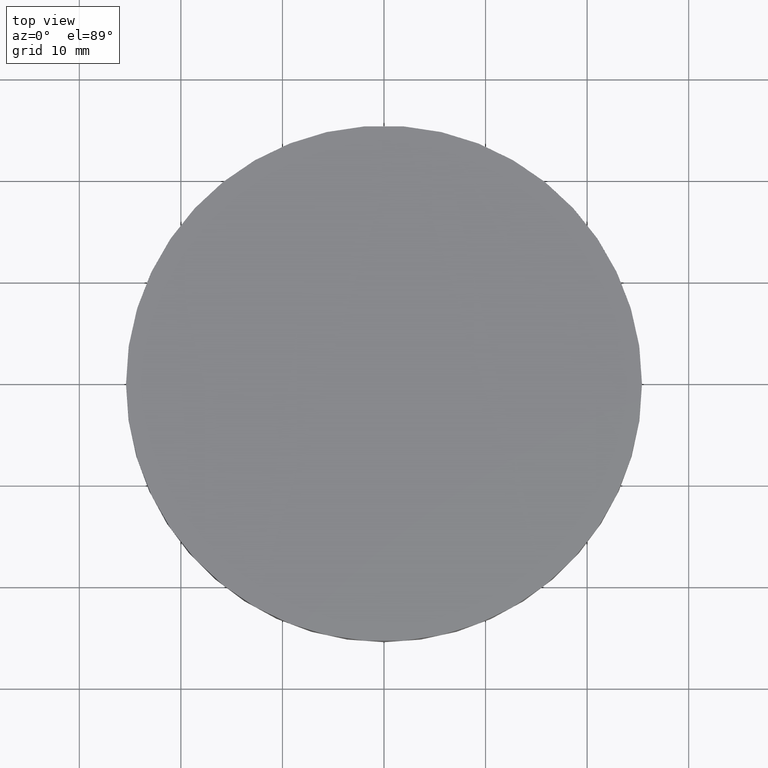
[diagram: clean part render]
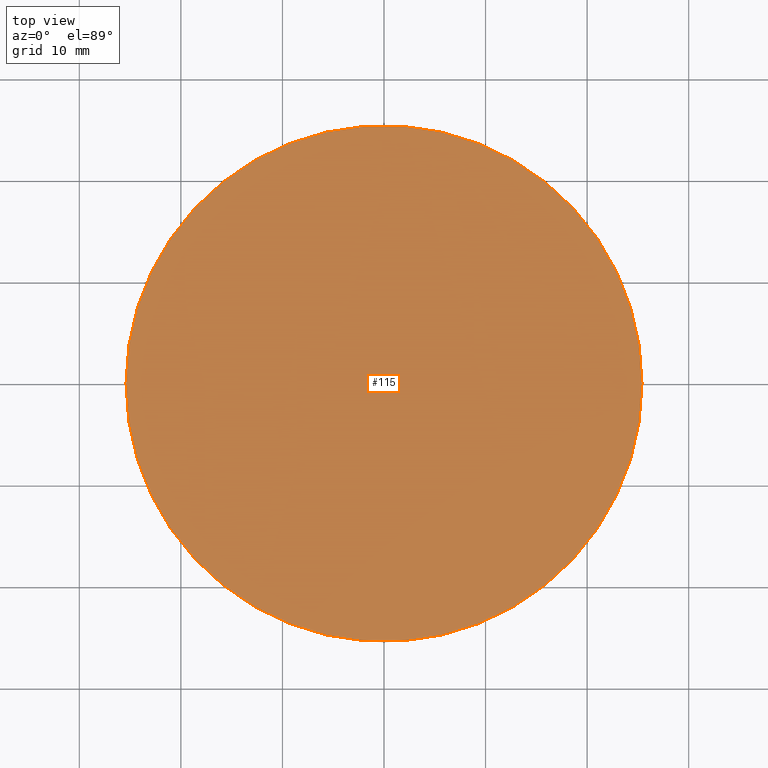
[diagram: same view with one face highlighted and labeled with its STEP entity id]
A machine part, top view. The second image highlights one B-rep face of the part: STEP entity #115.
In plain terms, the highlighted planar face has unit normal (0, 0, 1).
Its self-contained STEP definition (entity closure, byte-faithful):
#16 = DIRECTION ( 'NONE',  ( 1.000000000000000000, 0.0000000000000000000, -0.0000000000000000000 ) ) ;
#20 = VERTEX_POINT ( 'NONE', #99 ) ;
#34 = CIRCLE ( 'NONE', #106, 25.39999999999999900 ) ;
#53 = PLANE ( 'NONE',  #152 ) ;
#65 = VERTEX_POINT ( 'NONE', #192 ) ;
#81 = FACE_OUTER_BOUND ( 'NONE', #88, .T. ) ;
#88 = EDGE_LOOP ( 'NONE', ( #215, #214 ) ) ;
#89 = EDGE_CURVE ( 'NONE', #20, #65, #160, .T. ) ;
#99 = CARTESIAN_POINT ( 'NONE',  ( 25.39999999999999900, 4.884981308350691100E-015, 4.999999999999999100 ) ) ;
#103 = AXIS2_PLACEMENT_3D ( 'NONE', #217, #138, #123 ) ;
#104 = DIRECTION ( 'NONE',  ( -0.0000000000000000000, -0.0000000000000000000, -1.000000000000000000 ) ) ;
#106 = AXIS2_PLACEMENT_3D ( 'NONE', #183, #104, #216 ) ;
#115 = ADVANCED_FACE ( 'NONE', ( #81 ), #53, .T. ) ;
#123 = DIRECTION ( 'NONE',  ( 1.000000000000000000, 0.0000000000000000000, 0.0000000000000000000 ) ) ;
#131 = EDGE_CURVE ( 'NONE', #65, #20, #34, .T. ) ;
#138 = DIRECTION ( 'NONE',  ( -0.0000000000000000000, -0.0000000000000000000, -1.000000000000000000 ) ) ;
#152 = AXIS2_PLACEMENT_3D ( 'NONE', #218, #180, #16 ) ;
#160 = CIRCLE ( 'NONE', #103, 25.39999999999999900 ) ;
#180 = DIRECTION ( 'NONE',  ( 0.0000000000000000000, 0.0000000000000000000, 1.000000000000000000 ) ) ;
#183 = CARTESIAN_POINT ( 'NONE',  ( 9.992007221626412800E-016, 4.884981308350691100E-015, 4.999999999999999100 ) ) ;
#192 = CARTESIAN_POINT ( 'NONE',  ( -25.39999999999999900, 7.995584178184967200E-015, 4.999999999999999100 ) ) ;
#214 = ORIENTED_EDGE ( 'NONE', *, *, #131, .F. ) ;
#215 = ORIENTED_EDGE ( 'NONE', *, *, #89, .F. ) ;
#216 = DIRECTION ( 'NONE',  ( 1.000000000000000000, 0.0000000000000000000, 0.0000000000000000000 ) ) ;
#217 = CARTESIAN_POINT ( 'NONE',  ( 9.992007221626412800E-016, 4.884981308350691100E-015, 4.999999999999999100 ) ) ;
#218 = CARTESIAN_POINT ( 'NONE',  ( 0.0000000000000000000, 52.02000000000000300, 5.000000000000000000 ) ) ;